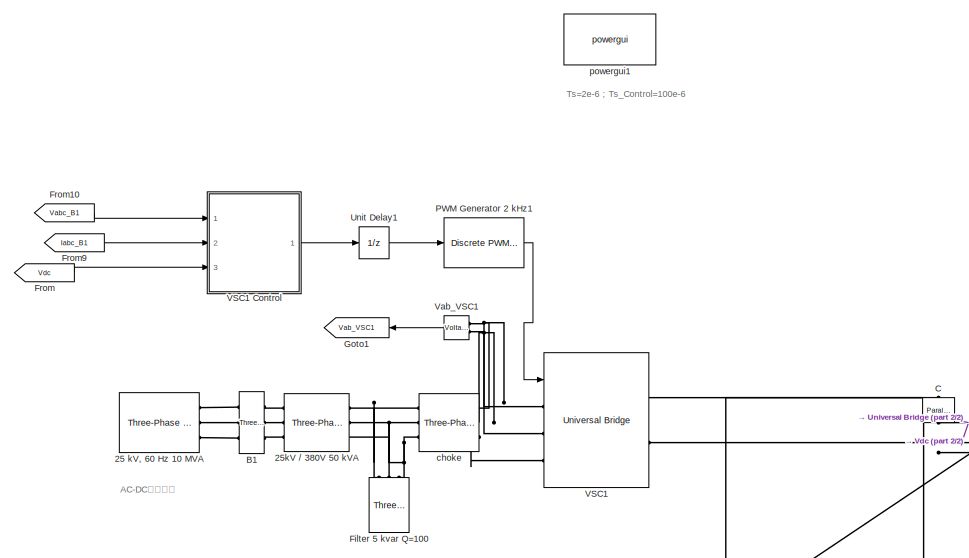
[diagram: root canvas - part 1/2, middle left region]
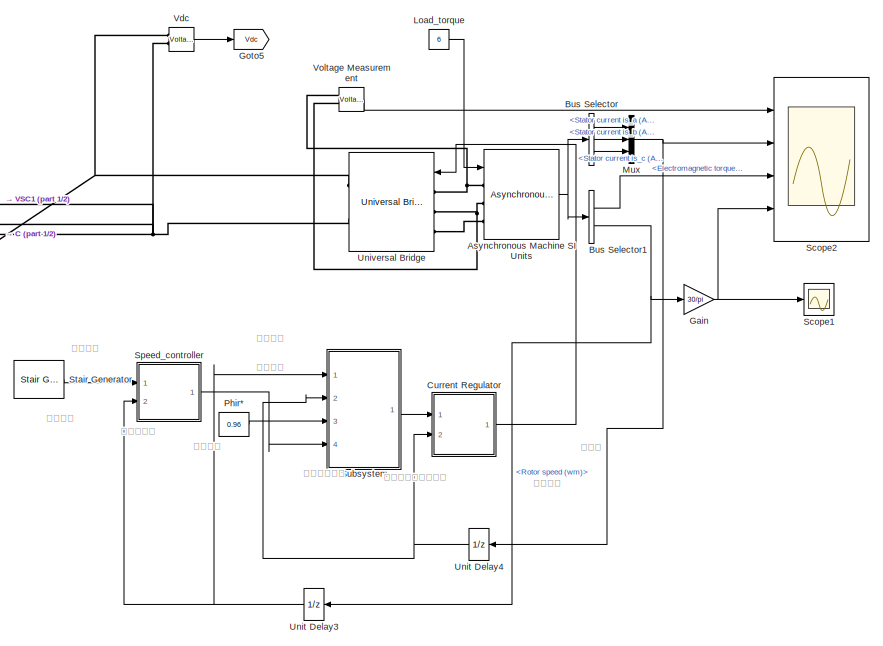
[diagram: root canvas - part 2/2, middle right region]
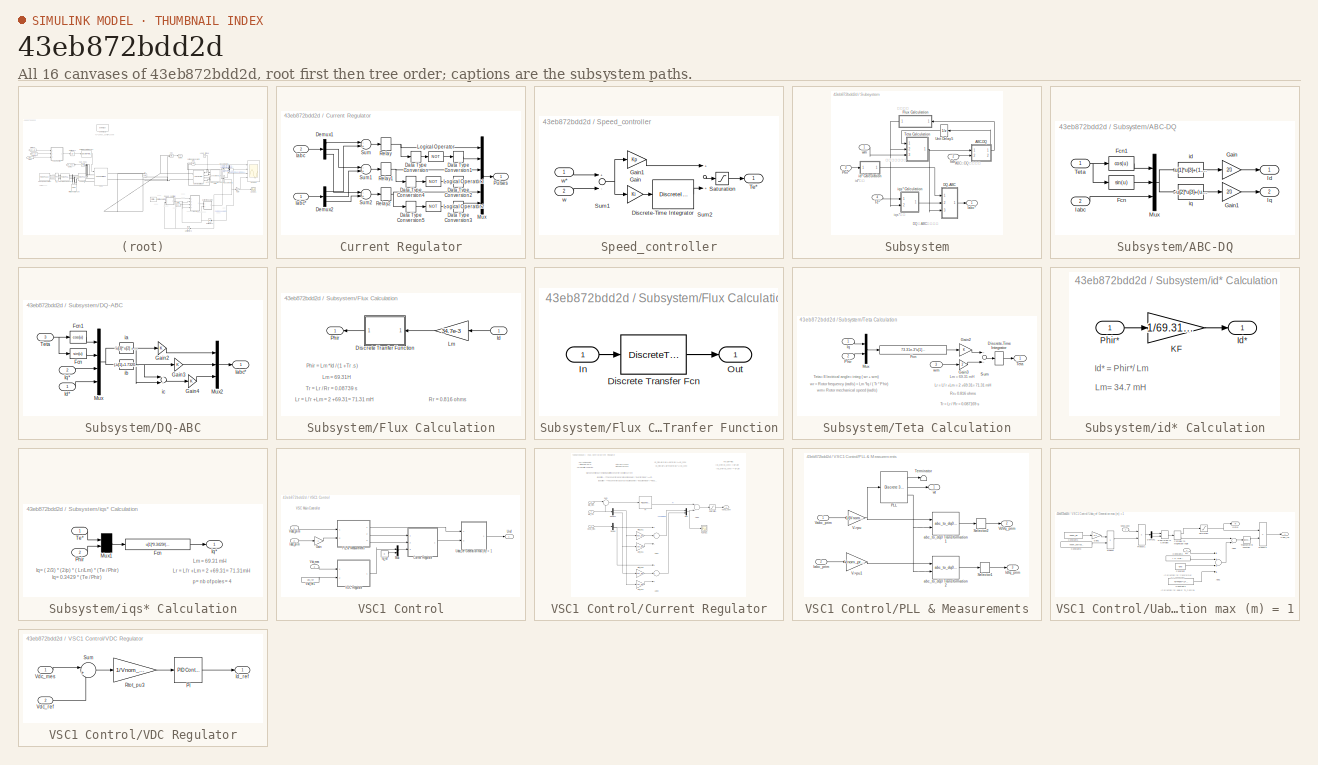
[diagram: thumbnail index - all 16 canvases of the model, root first then tree order]
MODEL slx_43eb872bdd2d
KIND model
CONFIG AbsTol = auto
CONFIG EnableMultiTasking = off
CONFIG FixedStep = 2e-6
CONFIG MaxStep = auto
CONFIG MinStep = auto
CONFIG PreLoadFcn = assignin('base','Ts',[2e-6])
CONFIG RelTol = 1e-4
CONFIG SampleTimeConstraint = Unconstrained
CONFIG Solver = FixedStepDiscrete
CONFIG SolverName = FixedStepDiscrete
CONFIG StartTime = 0.0
CONFIG StopTime = 12
BLOCK [Reference] 25 kV, 60 Hz 10 MVA  REF=powerlib/Electrical
Sources/Three-Phase Source
  Ports = [0, 0, 0, 0, 0, 0, 3]
  SourceBlock = powerlib/Electrical\nSources/Three-Phase Source
  SourceProductBaseCode = PS
  SourceProductName = Simscape Power Systems
  SourceType = Three-Phase Source
BLOCK [Reference] 25kV // 380V 50 kVA  REF=powerlib/Elements/Three-Phase
Transformer
(Two Windings)
  AttributesFormatString = \n
  Ports = [0, 0, 0, 0, 0, 3, 3]
  SourceBlock = powerlib/Elements/Three-Phase\nTransformer\n(Two Windings)
  SourceProductBaseCode = PS
  SourceProductName = Simscape Power Systems
  SourceType = Three-Phase Transformer (Two Windings)
BLOCK [Reference] Asynchronous Machine SI Units  REF=powerlib/Machines/Asynchronous Machine
SI Units
  Ports = [1, 1, 0, 0, 0, 3]
  SourceBlock = powerlib/Machines/Asynchronous Machine\nSI Units
  SourceProductBaseCode = PS
  SourceProductName = Simscape Power Systems
  SourceType = Asynchronous Machine
BLOCK [Reference] B1  REF=powerlib/Measurements/Three-Phase
V-I Measurement
  Ports = [0, 0, 0, 0, 0, 3, 3]
  SourceBlock = powerlib/Measurements/Three-Phase\nV-I Measurement
  SourceProductBaseCode = PS
  SourceProductName = Simscape Power Systems
  SourceType = Three-Phase VI Measurement
BLOCK [BusSelector] Bus Selector
  OutputAsBus = off
  OutputSignals = Stator measurements.Stator current is_a (A),Stator measurements.Stator current is_b (A),Stator measurements.Stator current is_c (A)
  Ports = [1, 3]
BLOCK [BusSelector] Bus Selector1
  OutputAsBus = off
  OutputSignals = Mechanical.Electromagnetic torque Te (N*m),Mechanical.Rotor speed (wm)
  Ports = [1, 2]
BLOCK [Reference] C  REF=powerlib/Elements/Parallel RLC Branch
  AttributesFormatString = \n
  Ports = [0, 0, 0, 0, 0, 1, 1]
  SourceBlock = powerlib/Elements/Parallel RLC Branch
  SourceProductBaseCode = PS
  SourceProductName = Simscape Power Systems
  SourceType = Parallel RLC Branch
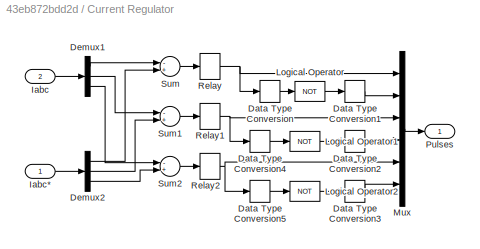
BLOCK [SubSystem] Current Regulator
  Ports = [2, 1]
  RequestExecContextInheritance = off
  Variant = off
BLOCK [DataTypeConversion] Current Regulator/Data Type Conversion
  OutDataTypeStr = boolean
BLOCK [DataTypeConversion] Current Regulator/Data Type Conversion1
  OutDataTypeStr = double
BLOCK [DataTypeConversion] Current Regulator/Data Type Conversion2
  OutDataTypeStr = double
BLOCK [DataTypeConversion] Current Regulator/Data Type Conversion3
  OutDataTypeStr = double
BLOCK [DataTypeConversion] Current Regulator/Data Type Conversion4
  OutDataTypeStr = boolean
BLOCK [DataTypeConversion] Current Regulator/Data Type Conversion5
  OutDataTypeStr = boolean
BLOCK [Demux] Current Regulator/Demux1
  Outputs = 3
  Ports = [1, 3]
BLOCK [Demux] Current Regulator/Demux2
  Outputs = 3
  Ports = [1, 3]
BLOCK [Inport] Current Regulator/Iabc
  IconDisplay = Port number
  Port = 2
BLOCK [Inport] Current Regulator/Iabc*
  IconDisplay = Port number
BLOCK [Logic] Current Regulator/Logical Operator
  Operator = NOT
  Ports = [1, 1]
BLOCK [Logic] Current Regulator/Logical Operator1
  Operator = NOT
  Ports = [1, 1]
BLOCK [Logic] Current Regulator/Logical Operator2
  Operator = NOT
  Ports = [1, 1]
BLOCK [Mux] Current Regulator/Mux
  Inputs = 6
  Ports = [6, 1]
BLOCK [Outport] Current Regulator/Pulses
  IconDisplay = Port number
  InitialOutput = 0
BLOCK [Relay] Current Regulator/Relay
  OffSwitchValue = -h/2
  OnSwitchValue = h/2
BLOCK [Relay] Current Regulator/Relay1
  OffSwitchValue = -h/2
  OnSwitchValue = h/2
BLOCK [Relay] Current Regulator/Relay2
  OffSwitchValue = -h/2
  OnSwitchValue = h/2
BLOCK [Sum] Current Regulator/Sum
  Inputs = -+
  Ports = [2, 1]
BLOCK [Sum] Current Regulator/Sum1
  Inputs = -+
  Ports = [2, 1]
BLOCK [Sum] Current Regulator/Sum2
  Inputs = -+
  Ports = [2, 1]
BLOCK [Reference] Filter 5 kvar Q=100  REF=powerlib/Elements/Three-Phase
Series RLC Load
  AttributesFormatString = \n
  Ports = [0, 0, 0, 0, 0, 3]
  SourceBlock = powerlib/Elements/Three-Phase\nSeries RLC Load
  SourceProductBaseCode = PS
  SourceProductName = Simscape Power Systems
  SourceType = Three-Phase Series RLC Load
BLOCK [From] From
  GotoTag = Vdc
  TagVisibility = global
BLOCK [From] From10
  CloseFcn = tagdialog Close
  GotoTag = Vabc_B1
  TagVisibility = global
BLOCK [From] From9
  CloseFcn = tagdialog Close
  GotoTag = Iabc_B1
  TagVisibility = global
BLOCK [Gain] Gain
  Gain = 30/pi
  OutDataTypeStr = Inherit: Inherit via internal rule
  ParamDataTypeStr = Inherit: Inherit via internal rule
  SaturateOnIntegerOverflow = off
BLOCK [Goto] Goto1
  GotoTag = Vab_VSC1
  TagVisibility = global
BLOCK [Goto] Goto5
  GotoTag = Vdc
  TagVisibility = global
BLOCK [Constant] Load_torque 
  Value = 6
BLOCK [Mux] Mux
  DisplayOption = bar
  Inputs = 3
  Ports = [3, 1]
BLOCK [Reference] PWM Generator 2 kHz1  REF=powerlib_extras/Discrete 
Control Blocks/Discrete
PWM Generator
  Ports = [1, 1]
  SourceBlock = powerlib_extras/Discrete \nControl Blocks/Discrete\nPWM Generator
  SourceType = Discrete PWM Generator
BLOCK [Constant] Phir*
  Value = 0.96
BLOCK [Scope] Scope1
  NumInputPorts = 1
  Ports = [1]
  ScopeSpecificationString = Simulink.scopes.TimeScopeBlockCfg('CurrentConfiguration', extmgr.ConfigurationSet(extmgr.Configuration('Core','General UI',true,'FigureColor',[1 1 1]),extmgr.Configuration('Core','Source UI',true),extmgr.Configuration('Sources','WiredSimulink',true,'DataLoggingVariableName','ScopeData1'),extmgr.Configuration('Visuals','Time Domain',true,'SerializedDisplays',{struct('MinYLimReal','0','MaxYLimReal',...<+4022ch>
BLOCK [Scope] Scope2
  NumInputPorts = 4
  Ports = [4]
  ScopeSpecificationString = Simulink.scopes.TimeScopeBlockCfg('CurrentConfiguration', extmgr.ConfigurationSet(extmgr.Configuration('Core','General UI',true,'FigureColor',[1 1 1]),extmgr.Configuration('Core','Source UI',true),extmgr.Configuration('Sources','WiredSimulink',true,'DataLoggingVariableName','ScopeData1'),extmgr.Configuration('Visuals','Time Domain',true,'SerializedDisplays',{struct('MinYLimReal','-1294.71271','Max...<+4113ch>
BLOCK [SubSystem] Speed_controller
  Ports = [2, 1]
  RequestExecContextInheritance = off
  Variant = off
BLOCK [DiscreteIntegrator] Speed_controller/Discrete-Time Integrator
  ICPrevOutput = DiscIntNeverNeededParam
  ICPrevScaledInput = DiscIntNeverNeededParam
  IntegratorMethod = Integration: Trapezoidal
  LimitOutput = on
  LowerSaturationLimit = -Tlim
  Ports = [1, 1]
  SampleTime = Ts
  UpperSaturationLimit = Tlim
BLOCK [Gain] Speed_controller/Gain
  Gain = Ki
BLOCK [Gain] Speed_controller/Gain1
  Gain = Kp
BLOCK [Saturate] Speed_controller/Saturation
  InputPortMap = u0
  LowerLimit = -Tlim
  Ports = [1, 1]
  UpperLimit = Tlim
BLOCK [Sum] Speed_controller/Sum1
  Inputs = +-
  Ports = [2, 1]
BLOCK [Sum] Speed_controller/Sum2
  Ports = [2, 1]
BLOCK [Outport] Speed_controller/Te*
  IconDisplay = Port number
  InitialOutput = 0
BLOCK [Inport] Speed_controller/w
  IconDisplay = Port number
  Port = 2
BLOCK [Inport] Speed_controller/w*
  IconDisplay = Port number
BLOCK [Reference] Stair Generator  REF=powerlib_meascontrol/Pulse & Signal
Generators/Stair
Generator
  Ports = [0, 1]
  SourceBlock = powerlib_meascontrol/Pulse & Signal\nGenerators/Stair\nGenerator
  SourceProductBaseCode = PS
  SourceProductName = Simscape Power Systems
  SourceType = Stair Generator
BLOCK [SubSystem] Subsystem
  Ports = [4, 1]
  RequestExecContextInheritance = off
  Variant = off
BLOCK [SubSystem] Subsystem/ABC-DQ
  Ports = [2, 2]
  RequestExecContextInheritance = off
  Variant = off
BLOCK [Fcn] Subsystem/ABC-DQ/Fcn
  Expr = sin(u)
BLOCK [Fcn] Subsystem/ABC-DQ/Fcn1
  Expr = cos(u)
BLOCK [Gain] Subsystem/ABC-DQ/Gain
  Gain = 2/3
BLOCK [Gain] Subsystem/ABC-DQ/Gain1
  Gain = 2/3
BLOCK [Inport] Subsystem/ABC-DQ/Iabc
  IconDisplay = Port number
  Port = 2
BLOCK [Outport] Subsystem/ABC-DQ/Id
  IconDisplay = Port number
  InitialOutput = 0
BLOCK [Outport] Subsystem/ABC-DQ/Iq
  IconDisplay = Port number
  InitialOutput = 0
  Port = 2
BLOCK [Mux] Subsystem/ABC-DQ/Mux
  Inputs = [1 1 3]
  Ports = [3, 1]
BLOCK [Inport] Subsystem/ABC-DQ/Teta
  IconDisplay = Port number
BLOCK [Fcn] Subsystem/ABC-DQ/id
  Expr = u[1]*u[3]+(1.7320508*u[2]-u[1])*u[4]*0.5+(-u[1]-1.7320508*u[2])*u[5]*0.5
BLOCK [Fcn] Subsystem/ABC-DQ/iq
  Expr = -u[2]*u[3]+(u[2]+1.7320508*u[1])*u[4]*0.5+(u[2]-1.7320508*u[1])*u[5]*0.5
BLOCK [SubSystem] Subsystem/DQ-ABC
  Ports = [3, 1]
  RequestExecContextInheritance = off
  Variant = off
BLOCK [Fcn] Subsystem/DQ-ABC/Fcn
  Expr = sin(u)
BLOCK [Fcn] Subsystem/DQ-ABC/Fcn1
  Expr = cos(u)
BLOCK [Gain] Subsystem/DQ-ABC/Gain2
BLOCK [Gain] Subsystem/DQ-ABC/Gain3
BLOCK [Gain] Subsystem/DQ-ABC/Gain4
BLOCK [Outport] Subsystem/DQ-ABC/Iabc*
  IconDisplay = Port number
  InitialOutput = 0
BLOCK [Inport] Subsystem/DQ-ABC/Id*
  IconDisplay = Port number
BLOCK [Inport] Subsystem/DQ-ABC/Iq*
  IconDisplay = Port number
  Port = 2
BLOCK [Mux] Subsystem/DQ-ABC/Mux
  Ports = [4, 1]
BLOCK [Mux] Subsystem/DQ-ABC/Mux2
  Inputs = 3
  Ports = [3, 1]
BLOCK [Inport] Subsystem/DQ-ABC/Teta
  IconDisplay = Port number
  Port = 3
BLOCK [Fcn] Subsystem/DQ-ABC/ia
  Expr = -u[3]*u[2] + u[4]*u[1]
BLOCK [Fcn] Subsystem/DQ-ABC/ib
  Expr = (-u[1]+1.7320508*u[2])*u[4]*0.5+(u[2]+1.7320508*u[1])*u[3]*0.5
BLOCK [Sum] Subsystem/DQ-ABC/ic
  Inputs = --
  Ports = [2, 1]
BLOCK [SubSystem] Subsystem/Flux Calculation
  Ports = [1, 1]
  RequestExecContextInheritance = off
  Variant = off
BLOCK [SubSystem] Subsystem/Flux Calculation/Discrete Tranfer Function
  Ports = [1, 1]
  RequestExecContextInheritance = off
  Variant = off
BLOCK [DiscreteTransferFcn] Subsystem/Flux Calculation/Discrete Tranfer Function/Discrete Transfer Fcn
  Denominator = dend
  InputPortMap = u0
  Numerator = numd
  Ports = [1, 1]
  SampleTime = Ts
BLOCK [Inport] Subsystem/Flux Calculation/Discrete Tranfer Function/In
  IconDisplay = Port number
BLOCK [Outport] Subsystem/Flux Calculation/Discrete Tranfer Function/Out
  IconDisplay = Port number
  InitialOutput = 0
BLOCK [Inport] Subsystem/Flux Calculation/Id
  IconDisplay = Port number
BLOCK [Gain] Subsystem/Flux Calculation/Lm
  Gain = 34.7e-3
BLOCK [Outport] Subsystem/Flux Calculation/Phir
  IconDisplay = Port number
BLOCK [Inport] Subsystem/Iabc
  IconDisplay = Port number
  Port = 2
BLOCK [Outport] Subsystem/Iabc*
  IconDisplay = Port number
BLOCK [Inport] Subsystem/Phir*
  IconDisplay = Port number
  Port = 3
BLOCK [Inport] Subsystem/Te*
  IconDisplay = Port number
  Port = 4
BLOCK [SubSystem] Subsystem/Teta Calculation
  Ports = [3, 1]
  RequestExecContextInheritance = off
  Variant = off
BLOCK [DiscreteIntegrator] Subsystem/Teta Calculation/Discrete-Time Integrator
  ICPrevOutput = DiscIntNeverNeededParam
  ICPrevScaledInput = DiscIntNeverNeededParam
  Ports = [1, 1]
  SampleTime = Ts
BLOCK [Fcn] Subsystem/Teta Calculation/Fcn
  Expr = 73.31e-3*u[1]/(u[2]*0.087169+1e-3)
BLOCK [Gain] Subsystem/Teta Calculation/Gain2
BLOCK [Gain] Subsystem/Teta Calculation/Gain3
  Gain = 2
BLOCK [Inport] Subsystem/Teta Calculation/Iq
  IconDisplay = Port number
BLOCK [Mux] Subsystem/Teta Calculation/Mux
  Inputs = 2
  Ports = [2, 1]
BLOCK [Inport] Subsystem/Teta Calculation/Phir
  IconDisplay = Port number
  Port = 2
BLOCK [Sum] Subsystem/Teta Calculation/Sum
  Ports = [2, 1]
BLOCK [Outport] Subsystem/Teta Calculation/Teta
  IconDisplay = Port number
  InitialOutput = 0
BLOCK [Inport] Subsystem/Teta Calculation/wm
  IconDisplay = Port number
  Port = 3
BLOCK [UnitDelay] Subsystem/Unit Delay5
  SampleTime = Ts
BLOCK [SubSystem] Subsystem/id* Calculation
  Ports = [1, 1]
  RequestExecContextInheritance = off
  Variant = off
BLOCK [Outport] Subsystem/id* Calculation/Id*
  IconDisplay = Port number
BLOCK [Gain] Subsystem/id* Calculation/KF
  Gain = 1/69.31e-3
BLOCK [Inport] Subsystem/id* Calculation/Phir*
  IconDisplay = Port number
BLOCK [SubSystem] Subsystem/iqs* Calculation
  Ports = [2, 1]
  RequestExecContextInheritance = off
  Variant = off
BLOCK [Fcn] Subsystem/iqs* Calculation/Fcn
  Expr = u[1]*0.3429/(u[2]+1e-3)
BLOCK [Outport] Subsystem/iqs* Calculation/Iq*
  IconDisplay = Port number
  InitialOutput = 0
BLOCK [Mux] Subsystem/iqs* Calculation/Mux1
  Inputs = 2
  Ports = [2, 1]
BLOCK [Inport] Subsystem/iqs* Calculation/Phir
  IconDisplay = Port number
  Port = 2
BLOCK [Inport] Subsystem/iqs* Calculation/Te*
  IconDisplay = Port number
BLOCK [Inport] Subsystem/wm
  IconDisplay = Port number
BLOCK [UnitDelay] Unit Delay1
  InputProcessing = Elements as channels (sample based)
  SampleTime = Ts_Control
BLOCK [UnitDelay] Unit Delay3
  SampleTime = Ts
BLOCK [UnitDelay] Unit Delay4
  SampleTime = Ts
BLOCK [Reference] Universal Bridge  REF=powerlib/Power
Electronics/Universal Bridge
  Ports = [1, 0, 0, 0, 0, 3, 2]
  SourceBlock = powerlib/Power\nElectronics/Universal Bridge
  SourceProductBaseCode = PS
  SourceProductName = Simscape Power Systems
  SourceType = Universal Bridge
BLOCK [Reference] VSC1  REF=powerlib/Power
Electronics/Universal Bridge
  Ports = [1, 0, 0, 0, 0, 3, 2]
  SourceBlock = powerlib/Power\nElectronics/Universal Bridge
  SourceProductBaseCode = PS
  SourceProductName = Simscape Power Systems
  SourceType = Universal Bridge
BLOCK [SubSystem] VSC1 Control
  Ports = [3, 1]
  RequestExecContextInheritance = off
  Variant = off
BLOCK [SubSystem] VSC1 Control/Current Regulator
  Ports = [3, 1]
  RequestExecContextInheritance = off
  Variant = off
BLOCK [Sum] VSC1 Control/Current Regulator/Add1
  InputSameDT = off
  Inputs = ++-
  OutDataTypeStr = Inherit: Inherit via internal rule
  Ports = [3, 1]
  SaturateOnIntegerOverflow = off
BLOCK [Sum] VSC1 Control/Current Regulator/Add2
  InputSameDT = off
  OutDataTypeStr = Inherit: Inherit via internal rule
  Ports = [2, 1]
  SaturateOnIntegerOverflow = off
BLOCK [Sum] VSC1 Control/Current Regulator/Add3
  InputSameDT = off
  Inputs = +++
  OutDataTypeStr = Inherit: Inherit via internal rule
  Ports = [3, 1]
  SaturateOnIntegerOverflow = off
BLOCK [Demux] VSC1 Control/Current Regulator/Demux
  DisplayOption = bar
  Outputs = 2
  Ports = [1, 2]
BLOCK [Demux] VSC1 Control/Current Regulator/Demux1
  DisplayOption = bar
  Outputs = 2
  Ports = [1, 2]
BLOCK [Inport] VSC1 Control/Current Regulator/IdIq_mes
  IconDisplay = Port number
  Port = 2
  PortDimensions = 2
BLOCK [Inport] VSC1 Control/Current Regulator/IdIq_ref
  IconDisplay = Port number
  Port = 3
  PortDimensions = 2
BLOCK [Gain] VSC1 Control/Current Regulator/Ltot_pu1
  Gain = Ltot_pu
BLOCK [Gain] VSC1 Control/Current Regulator/Ltot_pu2
  Gain = Ltot_pu
BLOCK [Mux] VSC1 Control/Current Regulator/Mux
  DisplayOption = bar
  Inputs = 2
  Ports = [2, 1]
BLOCK [Reference] VSC1 Control/Current Regulator/PI  REF=simulink/Continuous/PID Controller
  Ports = [1, 1]
  SourceBlock = simulink/Continuous/PID Controller
  SourceProductBaseCode = SL
  SourceProductName = Simulink
  SourceType = PID 1dof
BLOCK [Scope] VSC1 Control/Current Regulator/PI_Ireg1
  NumInputPorts = 1
  Ports = [1]
  ScopeSpecificationString = C++SS(StrPVP('Location','[320, 533, 983, 1080]'),StrPVP('Open','off'),StrPVP('ZoomMode','yonly'),MxPVP('AxesTitles',53,'struct(''axes1'',''%<SignalLabel>'')'),MxPVP('ScopeGraphics',56,'struct(''FigureColor'',''[0.5 0.5 0.5]'',''AxesColor'',''[0 0 0]'',''AxesTickColor'',''[1 1 1]'',''LineColors'',''[1 1 0;1 0 1;0 1 1;1 0 0;0 1 0;0 0 1]'',''LineStyles'',''-|-|-|-|-|-'',''LineWidths'',''[0.5 0.5 0.5 ...<+350ch>
BLOCK [Gain] VSC1 Control/Current Regulator/Rtot_pu1
  Gain = Rtot_pu
BLOCK [Gain] VSC1 Control/Current Regulator/Rtot_pu5
  Gain = Rtot_pu
BLOCK [Saturate] VSC1 Control/Current Regulator/Saturation
  InputPortMap = u0
  LowerLimit = -2
  Ports = [1, 1]
  UpperLimit = 2
BLOCK [Sum] VSC1 Control/Current Regulator/Sum
  IconShape = round
  InputSameDT = off
  Inputs = |-+
  OutDataTypeStr = Inherit: Inherit via internal rule
  Ports = [2, 1]
  SaturateOnIntegerOverflow = off
BLOCK [Outport] VSC1 Control/Current Regulator/VdVq_conv
  IconDisplay = Port number
BLOCK [Inport] VSC1 Control/Current Regulator/VdVq_mes
  IconDisplay = Port number
  PortDimensions = 2
BLOCK [Gain] VSC1 Control/Gain
  Gain = -1
  OutDataTypeStr = Inherit: Inherit via internal rule
  ParamDataTypeStr = Inherit: Inherit via internal rule
  SaturateOnIntegerOverflow = off
BLOCK [Inport] VSC1 Control/Iabc_prim
  IconDisplay = Port number
  Port = 2
  PortDimensions = 3
BLOCK [Constant] VSC1 Control/Iq_ref
  Value = 0
BLOCK [Mux] VSC1 Control/Mux
  DisplayOption = bar
  Inputs = 2
  Ports = [2, 1]
BLOCK [SubSystem] VSC1 Control/PLL & Measurements
  Ports = [2, 3]
  RequestExecContextInheritance = off
  Variant = off
BLOCK [Inport] VSC1 Control/PLL & Measurements/Iabc_prim
  IconDisplay = Port number
  Port = 2
BLOCK [Outport] VSC1 Control/PLL & Measurements/IdIq_prim
  IconDisplay = Port number
  Port = 3
BLOCK [Reference] VSC1 Control/PLL & Measurements/PLL  REF=powerlib_extras/Discrete 
Control Blocks/Discrete
3-phase PLL
  Ports = [1, 3]
  SourceBlock = powerlib_extras/Discrete \nControl Blocks/Discrete\n3-phase PLL
  SourceType = Discrete 3-phase PLL
BLOCK [Selector] VSC1 Control/PLL & Measurements/Selector1
  IndexOptions = Index vector (dialog)
  Indices = [1 2]
  InputPortWidth = 3
  OutputSizes = 1
  Ports = [1, 1]
BLOCK [Selector] VSC1 Control/PLL & Measurements/Selector2
  IndexOptions = Index vector (dialog)
  Indices = [1 2]
  InputPortWidth = 3
  OutputSizes = 1
  Ports = [1, 1]
BLOCK [Terminator] VSC1 Control/PLL & Measurements/Terminator
BLOCK [Gain] VSC1 Control/PLL & Measurements/V->pu
  Gain = 1/(Vnom_prim*sqrt(2)/sqrt(3))
BLOCK [Gain] VSC1 Control/PLL & Measurements/V->pu1
  Gain = Vnom_prim*sqrt(3)/Pnom/sqrt(2)
BLOCK [Inport] VSC1 Control/PLL & Measurements/Vabc_prim
  IconDisplay = Port number
BLOCK [Outport] VSC1 Control/PLL & Measurements/VdVq_prim
  IconDisplay = Port number
  Port = 2
BLOCK [Reference] VSC1 Control/PLL & Measurements/abc_to_dq0 Transformation1  REF=powerlib_extras/Measurements/abc_to_dq0
Transformation
  Ports = [2, 1]
  SourceBlock = powerlib_extras/Measurements/abc_to_dq0\nTransformation
  SourceType = abc to dq0 Transformation
BLOCK [Reference] VSC1 Control/PLL & Measurements/abc_to_dq0 Transformation2  REF=powerlib_extras/Measurements/abc_to_dq0
Transformation
  Ports = [2, 1]
  SourceBlock = powerlib_extras/Measurements/abc_to_dq0\nTransformation
  SourceType = abc to dq0 Transformation
BLOCK [Outport] VSC1 Control/PLL & Measurements/wt
  IconDisplay = Port number
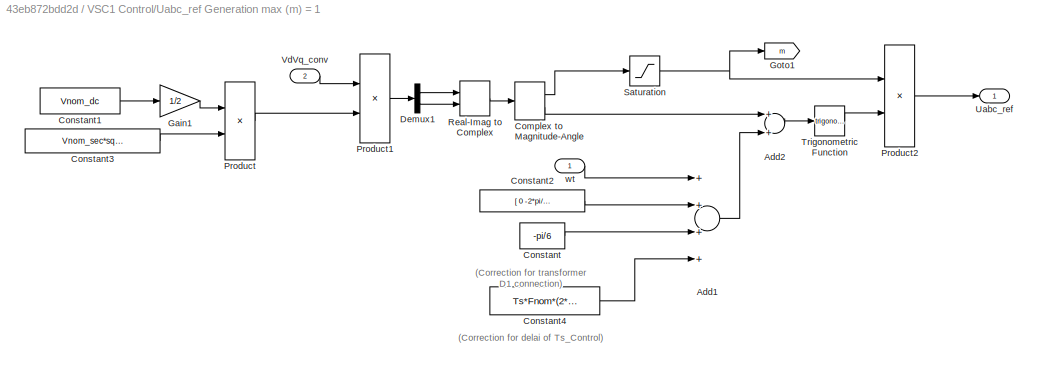
BLOCK [SubSystem] VSC1 Control/Uabc_ref Generation max (m) = 1
  Ports = [2, 1]
  RequestExecContextInheritance = off
  Variant = off
BLOCK [Sum] VSC1 Control/Uabc_ref Generation max (m) = 1/Add1
  InputSameDT = off
  Inputs = ++++
  OutDataTypeStr = Inherit: Inherit via internal rule
  Ports = [4, 1]
  SaturateOnIntegerOverflow = off
BLOCK [Sum] VSC1 Control/Uabc_ref Generation max (m) = 1/Add2
  InputSameDT = off
  OutDataTypeStr = Inherit: Inherit via internal rule
  Ports = [2, 1]
  SaturateOnIntegerOverflow = off
BLOCK [ComplexToMagnitudeAngle] VSC1 Control/Uabc_ref Generation max (m) = 1/Complex to Magnitude-Angle
  Ports = [1, 2]
BLOCK [Constant] VSC1 Control/Uabc_ref Generation max (m) = 1/Constant
  Value = -pi/6
BLOCK [Constant] VSC1 Control/Uabc_ref Generation max (m) = 1/Constant1
  Value = Vnom_dc
BLOCK [Constant] VSC1 Control/Uabc_ref Generation max (m) = 1/Constant2
  Value = [ 0  -2*pi/3  2*pi/3  ]
BLOCK [Constant] VSC1 Control/Uabc_ref Generation max (m) = 1/Constant3
  Value = Vnom_sec*sqrt(2)/sqrt(3)
BLOCK [Constant] VSC1 Control/Uabc_ref Generation max (m) = 1/Constant4
  Value = Ts*Fnom*(2*pi)
BLOCK [Demux] VSC1 Control/Uabc_ref Generation max (m) = 1/Demux1
  DisplayOption = bar
  Outputs = 2
  Ports = [1, 2]
BLOCK [Gain] VSC1 Control/Uabc_ref Generation max (m) = 1/Gain1
  Gain = 1/2
  OutDataTypeStr = Inherit: Inherit via internal rule
  ParamDataTypeStr = Inherit: Inherit via internal rule
  SaturateOnIntegerOverflow = off
BLOCK [Goto] VSC1 Control/Uabc_ref Generation max (m) = 1/Goto1
  GotoTag = m
  TagVisibility = global
BLOCK [Product] VSC1 Control/Uabc_ref Generation max (m) = 1/Product
  InputSameDT = off
  Inputs = */
  OutDataTypeStr = Inherit: Inherit via internal rule
  Ports = [2, 1]
  SaturateOnIntegerOverflow = off
BLOCK [Product] VSC1 Control/Uabc_ref Generation max (m) = 1/Product1
  InputSameDT = off
  Inputs = */
  OutDataTypeStr = Inherit: Inherit via internal rule
  Ports = [2, 1]
  SaturateOnIntegerOverflow = off
BLOCK [Product] VSC1 Control/Uabc_ref Generation max (m) = 1/Product2
  InputSameDT = off
  Inputs = **
  OutDataTypeStr = Inherit: Inherit via internal rule
  Ports = [2, 1]
  SaturateOnIntegerOverflow = off
BLOCK [RealImagToComplex] VSC1 Control/Uabc_ref Generation max (m) = 1/Real-Imag to Complex
  Ports = [2, 1]
BLOCK [Saturate] VSC1 Control/Uabc_ref Generation max (m) = 1/Saturation
  InputPortMap = u0
  LowerLimit = 0
  Ports = [1, 1]
  UpperLimit = 1
BLOCK [Trigonometry] VSC1 Control/Uabc_ref Generation max (m) = 1/Trigonometric Function
  Ports = [1, 1]
BLOCK [Outport] VSC1 Control/Uabc_ref Generation max (m) = 1/Uabc_ref
  IconDisplay = Port number
BLOCK [Inport] VSC1 Control/Uabc_ref Generation max (m) = 1/VdVq_conv
  IconDisplay = Port number
  Port = 2
BLOCK [Inport] VSC1 Control/Uabc_ref Generation max (m) = 1/wt
  IconDisplay = Port number
BLOCK [Outport] VSC1 Control/Uref
  IconDisplay = Port number
BLOCK [SubSystem] VSC1 Control/VDC Regulator
  Ports = [2, 1]
  RequestExecContextInheritance = off
  Variant = off
BLOCK [Outport] VSC1 Control/VDC Regulator/Id_ref
  IconDisplay = Port number
  InitialOutput = 0
  SampleTime = Ts
BLOCK [Reference] VSC1 Control/VDC Regulator/PI  REF=simulink/Continuous/PID Controller
  Ports = [1, 1]
  SourceBlock = simulink/Continuous/PID Controller
  SourceProductBaseCode = SL
  SourceProductName = Simulink
  SourceType = PID 1dof
BLOCK [Gain] VSC1 Control/VDC Regulator/Rtot_pu3
  Gain = 1/Vnom_dc
BLOCK [Sum] VSC1 Control/VDC Regulator/Sum
  IconShape = round
  InputSameDT = off
  Inputs = |+-
  OutDataTypeStr = Inherit: Inherit via internal rule
  Ports = [2, 1]
  SaturateOnIntegerOverflow = off
BLOCK [Inport] VSC1 Control/VDC Regulator/Vdc_mes
  IconDisplay = Port number
  PortDimensions = 1
BLOCK [Inport] VSC1 Control/VDC Regulator/Vdc_ref
  IconDisplay = Port number
  Port = 2
  PortDimensions = 1
BLOCK [Inport] VSC1 Control/Vabc_prim
  IconDisplay = Port number
  PortDimensions = 3
BLOCK [Inport] VSC1 Control/Vdc_mes
  IconDisplay = Port number
  Port = 3
  PortDimensions = 1
BLOCK [Constant] VSC1 Control/Vdc_ref1
  Value = Vdc_ref
BLOCK [Reference] Vab_VSC1  REF=powerlib/Measurements/Voltage Measurement
  AttributesFormatString = \n
  Ports = [0, 1, 0, 0, 0, 2]
  SourceBlock = powerlib/Measurements/Voltage Measurement
  SourceProductBaseCode = PS
  SourceProductName = Simscape Power Systems
  SourceType = Voltage Measurement
  Tag = PoWeRsYsTeMmEaSuReMeNt
BLOCK [Reference] Vdc   REF=powerlib/Measurements/Voltage Measurement
  AttributesFormatString = \n
  Ports = [0, 1, 0, 0, 0, 2]
  SourceBlock = powerlib/Measurements/Voltage Measurement
  SourceProductBaseCode = PS
  SourceProductName = Simscape Power Systems
  SourceType = Voltage Measurement
  Tag = PoWeRsYsTeMmEaSuReMeNt
BLOCK [Reference] Voltage Measurement  REF=powerlib/Measurements/Voltage Measurement
  Ports = [0, 1, 0, 0, 0, 2]
  SourceBlock = powerlib/Measurements/Voltage Measurement
  SourceProductBaseCode = PS
  SourceProductName = Simscape Power Systems
  SourceType = Voltage Measurement
  UserDataPersistent = on
BLOCK [Reference] choke  REF=powerlib/Elements/Three-Phase
Series RLC Branch
  AttributesFormatString = \n
  Ports = [0, 0, 0, 0, 0, 3, 3]
  SourceBlock = powerlib/Elements/Three-Phase\nSeries RLC Branch
  SourceProductBaseCode = PS
  SourceProductName = Simscape Power Systems
  SourceType = Three-Phase Series RLC Branch
BLOCK [Reference] powergui1  REF=powerlib/powergui
  Ports = []
  Priority = 2
  SourceBlock = powerlib/powergui
  SourceProductBaseCode = PS
  SourceProductName = Simscape Power Systems
  SourceType = PSB option menu block
ANNOTATION (root): Ts=2e-6 ; Ts_Control=100e-6
ANNOTATION (root): AC-DC变换系统
ANNOTATION (root): 实际转速
ANNOTATION (root): 期望转速
ANNOTATION (root): 电流比较脉冲产生器
ANNOTATION (root): 矢量控制环节
ANNOTATION (root): 示波器
ANNOTATION (root): 给定磁链
ANNOTATION (root): 负载转矩
ANNOTATION (root): 转子电流
ANNOTATION (root): 速度控制器
ANNOTATION Subsystem: ABC到DQ坐标转换
ANNOTATION Subsystem: DQ到ABC坐标转换
ANNOTATION Subsystem: id*求解
ANNOTATION Subsystem: iqs*求解
ANNOTATION Subsystem: 求解磁链
ANNOTATION Subsystem: 求解转子磁链角
ANNOTATION Subsystem/Flux Calculation: Lm = 69.31H
ANNOTATION Subsystem/Flux Calculation: Lr = Ll'r +Lm = 2 +69.31= 71.31 mH
ANNOTATION Subsystem/Flux Calculation: Phir = Lm *Id / (1 +Tr .s)
ANNOTATION Subsystem/Flux Calculation: Rr = 0.816 ohms
ANNOTATION Subsystem/Flux Calculation: Tr = Lr / Rr = 0.08739 s
ANNOTATION Subsystem/Teta Calculation: Teta= Electrical angle= integ ( wr + wm)
ANNOTATION Subsystem/Teta Calculation: Lm = 69.31 mH
ANNOTATION Subsystem/Teta Calculation: Lr = Ll'r +Lm = 2 +69.31= 71.31 mH
ANNOTATION Subsystem/Teta Calculation: Rr= 0.816 ohms
ANNOTATION Subsystem/Teta Calculation: Tr = Lr / Rr = 0.087169 s
ANNOTATION Subsystem/Teta Calculation: wm= Rotor mechanical speed (rad/s)
ANNOTATION Subsystem/Teta Calculation: wr = Rotor frequency (rad/s) = Lm *Iq / ( Tr * Phir)
ANNOTATION Subsystem/id* Calculation: Id* = Phir*/ Lm
ANNOTATION Subsystem/id* Calculation: Lm= 34.7 mH
ANNOTATION Subsystem/iqs* Calculation: Iq= ( 2/3) * (2/p) * ( Lr/Lm) * (Te / Phir)
ANNOTATION Subsystem/iqs* Calculation: Iq= 0.3429 * (Te / Phir)
ANNOTATION Subsystem/iqs* Calculation: Lm = 69.31 mH
ANNOTATION Subsystem/iqs* Calculation: Lr = Ll'r +Lm = 2 +69.31= 71.31mH
ANNOTATION Subsystem/iqs* Calculation: p= nb of poles = 4
ANNOTATION VSC1 Control: VSC Main Controller
ANNOTATION VSC1 Control/Current Regulator: (Vd_prim - Vd_conv) ~= + Iq * Ltot
ANNOTATION VSC1 Control/Current Regulator: (Vq_prim - Vq_conv) ~ = - Id * Ltot
ANNOTATION VSC1 Control/Current Regulator: Current Regulator (with feedforward)
ANNOTATION VSC1 Control/Current Regulator: For Ltot >> Rtot :
ANNOTATION VSC1 Control/Current Regulator: Id positive --> The converter generates active power ("Inverter mode") = Active Power P positive
ANNOTATION VSC1 Control/Current Regulator: Iq positive --> The converter absorbs reactive power ("Inductive mode") = Reactive Power Q negative
ANNOTATION VSC1 Control/Current Regulator: Ltot = Lxfo + Lchoke Rtot = Rxfo + Rchoke
ANNOTATION VSC1 Control/Current Regulator: Sign Convention: Current going out of the converter = positive current
ANNOTATION VSC1 Control/Current Regulator: Vd_mes + Id*R - Iq*L + deriv(Id)*L= Vd_conv
ANNOTATION VSC1 Control/Current Regulator: Vq_mes + Id*L + Iq*R + deriv(Iq)*L= Vq_conv
ANNOTATION VSC1 Control/Current Regulator: harmonic filter neglected
ANNOTATION VSC1 Control/Uabc_ref Generation max (m) = 1: (Correction for delai of Ts_Control)
ANNOTATION VSC1 Control/Uabc_ref Generation max (m) = 1: (Correction for transformer D1 connection)
NET Asynchronous Machine SI Units:1 -> Bus Selector1:1, Bus Selector:1
LINE Bus Selector1:1 -> Scope2:3
NET Bus Selector1:2 -> Gain:1, Unit Delay3:1
LINE Bus Selector:1 -> Mux:1
LINE Bus Selector:2 -> Mux:2
LINE Bus Selector:3 -> Mux:3
LINE Current Regulator/Data Type Conversion1:1 -> Current Regulator/Mux:2
LINE Current Regulator/Data Type Conversion2:1 -> Current Regulator/Mux:4
LINE Current Regulator/Data Type Conversion3:1 -> Current Regulator/Mux:6
LINE Current Regulator/Data Type Conversion4:1 -> Current Regulator/Logical Operator1:1
LINE Current Regulator/Data Type Conversion5:1 -> Current Regulator/Logical Operator2:1
LINE Current Regulator/Data Type Conversion:1 -> Current Regulator/Logical Operator:1
LINE Current Regulator/Demux1:1 -> Current Regulator/Sum:1
LINE Current Regulator/Demux1:2 -> Current Regulator/Sum1:1
LINE Current Regulator/Demux1:3 -> Current Regulator/Sum2:1
LINE Current Regulator/Demux2:1 -> Current Regulator/Sum:2
LINE Current Regulator/Demux2:2 -> Current Regulator/Sum1:2
LINE Current Regulator/Demux2:3 -> Current Regulator/Sum2:2
LINE Current Regulator/Iabc*:1 -> Current Regulator/Demux2:1
LINE Current Regulator/Iabc:1 -> Current Regulator/Demux1:1
LINE Current Regulator/Logical Operator1:1 -> Current Regulator/Data Type Conversion2:1
LINE Current Regulator/Logical Operator2:1 -> Current Regulator/Data Type Conversion3:1
LINE Current Regulator/Logical Operator:1 -> Current Regulator/Data Type Conversion1:1
LINE Current Regulator/Mux:1 -> Current Regulator/Pulses:1
NET Current Regulator/Relay1:1 -> Current Regulator/Data Type Conversion4:1, Current Regulator/Mux:3
NET Current Regulator/Relay2:1 -> Current Regulator/Data Type Conversion5:1, Current Regulator/Mux:5
NET Current Regulator/Relay:1 -> Current Regulator/Data Type Conversion:1, Current Regulator/Mux:1
LINE Current Regulator/Sum1:1 -> Current Regulator/Relay1:1
LINE Current Regulator/Sum2:1 -> Current Regulator/Relay2:1
LINE Current Regulator/Sum:1 -> Current Regulator/Relay:1
LINE Current Regulator:1 -> Universal Bridge:1
LINE From10:1 -> VSC1 Control:1
LINE From9:1 -> VSC1 Control:2
LINE From:1 -> VSC1 Control:3
NET Gain:1 -> Scope1:1, Scope2:4
LINE Load_torque :1 -> Asynchronous Machine SI Units:1
NET Mux:1 -> Scope2:2, Unit Delay4:1
LINE PWM Generator 2 kHz1:1 -> VSC1:1
LINE Phir*:1 -> Subsystem:3
LINE Speed_controller/Discrete-Time Integrator:1 -> Speed_controller/Sum2:2
LINE Speed_controller/Gain1:1 -> Speed_controller/Sum2:1
LINE Speed_controller/Gain:1 -> Speed_controller/Discrete-Time Integrator:1
LINE Speed_controller/Saturation:1 -> Speed_controller/Te*:1
NET Speed_controller/Sum1:1 -> Speed_controller/Gain1:1, Speed_controller/Gain:1
LINE Speed_controller/Sum2:1 -> Speed_controller/Saturation:1
LINE Speed_controller/w*:1 -> Speed_controller/Sum1:1
LINE Speed_controller/w:1 -> Speed_controller/Sum1:2
LINE Speed_controller:1 -> Subsystem:4
LINE Stair Generator:1 -> Speed_controller:1
LINE Subsystem/ABC-DQ/Fcn1:1 -> Subsystem/ABC-DQ/Mux:1
LINE Subsystem/ABC-DQ/Fcn:1 -> Subsystem/ABC-DQ/Mux:2
LINE Subsystem/ABC-DQ/Gain1:1 -> Subsystem/ABC-DQ/Iq:1
LINE Subsystem/ABC-DQ/Gain:1 -> Subsystem/ABC-DQ/Id:1
LINE Subsystem/ABC-DQ/Iabc:1 -> Subsystem/ABC-DQ/Mux:3
NET Subsystem/ABC-DQ/Mux:1 -> Subsystem/ABC-DQ/id:1, Subsystem/ABC-DQ/iq:1
NET Subsystem/ABC-DQ/Teta:1 -> Subsystem/ABC-DQ/Fcn1:1, Subsystem/ABC-DQ/Fcn:1
LINE Subsystem/ABC-DQ/id:1 -> Subsystem/ABC-DQ/Gain:1
LINE Subsystem/ABC-DQ/iq:1 -> Subsystem/ABC-DQ/Gain1:1
LINE Subsystem/ABC-DQ:1 -> Subsystem/Flux Calculation:1
LINE Subsystem/ABC-DQ:2 -> Subsystem/Unit Delay5:1
LINE Subsystem/DQ-ABC/Fcn1:1 -> Subsystem/DQ-ABC/Mux:1
LINE Subsystem/DQ-ABC/Fcn:1 -> Subsystem/DQ-ABC/Mux:2
LINE Subsystem/DQ-ABC/Gain2:1 -> Subsystem/DQ-ABC/Mux2:1
LINE Subsystem/DQ-ABC/Gain3:1 -> Subsystem/DQ-ABC/Mux2:2
LINE Subsystem/DQ-ABC/Gain4:1 -> Subsystem/DQ-ABC/Mux2:3
LINE Subsystem/DQ-ABC/Id*:1 -> Subsystem/DQ-ABC/Mux:4
LINE Subsystem/DQ-ABC/Iq*:1 -> Subsystem/DQ-ABC/Mux:3
LINE Subsystem/DQ-ABC/Mux2:1 -> Subsystem/DQ-ABC/Iabc*:1
NET Subsystem/DQ-ABC/Mux:1 -> Subsystem/DQ-ABC/ia:1, Subsystem/DQ-ABC/ib:1
NET Subsystem/DQ-ABC/Teta:1 -> Subsystem/DQ-ABC/Fcn1:1, Subsystem/DQ-ABC/Fcn:1
NET Subsystem/DQ-ABC/ia:1 -> Subsystem/DQ-ABC/Gain2:1, Subsystem/DQ-ABC/ic:2
NET Subsystem/DQ-ABC/ib:1 -> Subsystem/DQ-ABC/Gain3:1, Subsystem/DQ-ABC/ic:1
LINE Subsystem/DQ-ABC/ic:1 -> Subsystem/DQ-ABC/Gain4:1
LINE Subsystem/DQ-ABC:1 -> Subsystem/Iabc*:1
LINE Subsystem/Flux Calculation/Discrete Tranfer Function/Discrete Transfer Fcn:1 -> Subsystem/Flux Calculation/Discrete Tranfer Function/Out:1
LINE Subsystem/Flux Calculation/Discrete Tranfer Function/In:1 -> Subsystem/Flux Calculation/Discrete Tranfer Function/Discrete Transfer Fcn:1
LINE Subsystem/Flux Calculation/Discrete Tranfer Function:1 -> Subsystem/Flux Calculation/Phir:1
LINE Subsystem/Flux Calculation/Id:1 -> Subsystem/Flux Calculation/Lm:1
LINE Subsystem/Flux Calculation/Lm:1 -> Subsystem/Flux Calculation/Discrete Tranfer Function:1
NET Subsystem/Flux Calculation:1 -> Subsystem/Teta Calculation:2, Subsystem/iqs* Calculation:2
LINE Subsystem/Iabc:1 -> Subsystem/ABC-DQ:2
LINE Subsystem/Phir*:1 -> Subsystem/id* Calculation:1
LINE Subsystem/Te*:1 -> Subsystem/iqs* Calculation:1
LINE Subsystem/Teta Calculation/Discrete-Time Integrator:1 -> Subsystem/Teta Calculation/Teta:1
LINE Subsystem/Teta Calculation/Fcn:1 -> Subsystem/Teta Calculation/Gain2:1
LINE Subsystem/Teta Calculation/Gain2:1 -> Subsystem/Teta Calculation/Sum:1
LINE Subsystem/Teta Calculation/Gain3:1 -> Subsystem/Teta Calculation/Sum:2
LINE Subsystem/Teta Calculation/Iq:1 -> Subsystem/Teta Calculation/Mux:1
LINE Subsystem/Teta Calculation/Mux:1 -> Subsystem/Teta Calculation/Fcn:1
LINE Subsystem/Teta Calculation/Phir:1 -> Subsystem/Teta Calculation/Mux:2
LINE Subsystem/Teta Calculation/Sum:1 -> Subsystem/Teta Calculation/Discrete-Time Integrator:1
LINE Subsystem/Teta Calculation/wm:1 -> Subsystem/Teta Calculation/Gain3:1
NET Subsystem/Teta Calculation:1 -> Subsystem/ABC-DQ:1, Subsystem/DQ-ABC:3
LINE Subsystem/Unit Delay5:1 -> Subsystem/Teta Calculation:1
LINE Subsystem/id* Calculation/KF:1 -> Subsystem/id* Calculation/Id*:1
LINE Subsystem/id* Calculation/Phir*:1 -> Subsystem/id* Calculation/KF:1
LINE Subsystem/id* Calculation:1 -> Subsystem/DQ-ABC:1
LINE Subsystem/iqs* Calculation/Fcn:1 -> Subsystem/iqs* Calculation/Iq*:1
LINE Subsystem/iqs* Calculation/Mux1:1 -> Subsystem/iqs* Calculation/Fcn:1
LINE Subsystem/iqs* Calculation/Phir:1 -> Subsystem/iqs* Calculation/Mux1:2
LINE Subsystem/iqs* Calculation/Te*:1 -> Subsystem/iqs* Calculation/Mux1:1
LINE Subsystem/iqs* Calculation:1 -> Subsystem/DQ-ABC:2
LINE Subsystem/wm:1 -> Subsystem/Teta Calculation:3
LINE Subsystem:1 -> Current Regulator:1
LINE Unit Delay1:1 -> PWM Generator 2 kHz1:1
NET Unit Delay3:1 -> Speed_controller:2, Subsystem:1
NET Unit Delay4:1 -> Current Regulator:2, Subsystem:2
LINE VSC1 Control/Current Regulator/Add1:1 -> VSC1 Control/Current Regulator/Mux:1
LINE VSC1 Control/Current Regulator/Add2:1 -> VSC1 Control/Current Regulator/Saturation:1
LINE VSC1 Control/Current Regulator/Add3:1 -> VSC1 Control/Current Regulator/Mux:2
NET VSC1 Control/Current Regulator/Demux1:1 -> VSC1 Control/Current Regulator/Ltot_pu2:1, VSC1 Control/Current Regulator/Rtot_pu1:1
NET VSC1 Control/Current Regulator/Demux1:2 -> VSC1 Control/Current Regulator/Ltot_pu1:1, VSC1 Control/Current Regulator/Rtot_pu5:1
LINE VSC1 Control/Current Regulator/Demux:1 -> VSC1 Control/Current Regulator/Add1:1
LINE VSC1 Control/Current Regulator/Demux:2 -> VSC1 Control/Current Regulator/Add3:1
LINE VSC1 Control/Current Regulator/IdIq_mes:1 -> VSC1 Control/Current Regulator/Sum:1
NET VSC1 Control/Current Regulator/IdIq_ref:1 -> VSC1 Control/Current Regulator/Demux1:1, VSC1 Control/Current Regulator/Sum:2
LINE VSC1 Control/Current Regulator/Ltot_pu1:1 -> VSC1 Control/Current Regulator/Add1:3
LINE VSC1 Control/Current Regulator/Ltot_pu2:1 -> VSC1 Control/Current Regulator/Add3:3
NET VSC1 Control/Current Regulator/Mux:1 -> VSC1 Control/Current Regulator/Add2:2, VSC1 Control/Current Regulator/PI_Ireg1:1
LINE VSC1 Control/Current Regulator/PI:1 -> VSC1 Control/Current Regulator/Add2:1
LINE VSC1 Control/Current Regulator/Rtot_pu1:1 -> VSC1 Control/Current Regulator/Add1:2
LINE VSC1 Control/Current Regulator/Rtot_pu5:1 -> VSC1 Control/Current Regulator/Add3:2
LINE VSC1 Control/Current Regulator/Saturation:1 -> VSC1 Control/Current Regulator/VdVq_conv:1
LINE VSC1 Control/Current Regulator/Sum:1 -> VSC1 Control/Current Regulator/PI:1
LINE VSC1 Control/Current Regulator/VdVq_mes:1 -> VSC1 Control/Current Regulator/Demux:1
LINE VSC1 Control/Current Regulator:1 -> VSC1 Control/Uabc_ref Generation max (m) = 1:2
LINE VSC1 Control/Gain:1 -> VSC1 Control/PLL & Measurements:2
LINE VSC1 Control/Iabc_prim:1 -> VSC1 Control/Gain:1
LINE VSC1 Control/Iq_ref:1 -> VSC1 Control/Mux:2
LINE VSC1 Control/Mux:1 -> VSC1 Control/Current Regulator:3
LINE VSC1 Control/PLL & Measurements/Iabc_prim:1 -> VSC1 Control/PLL & Measurements/V->pu1:1
LINE VSC1 Control/PLL & Measurements/PLL:1 -> VSC1 Control/PLL & Measurements/Terminator:1
LINE VSC1 Control/PLL & Measurements/PLL:2 -> VSC1 Control/PLL & Measurements/wt:1
NET VSC1 Control/PLL & Measurements/PLL:3 -> VSC1 Control/PLL & Measurements/abc_to_dq0 Transformation1:2, VSC1 Control/PLL & Measurements/abc_to_dq0 Transformation2:2
LINE VSC1 Control/PLL & Measurements/Selector1:1 -> VSC1 Control/PLL & Measurements/IdIq_prim:1
LINE VSC1 Control/PLL & Measurements/Selector2:1 -> VSC1 Control/PLL & Measurements/VdVq_prim:1
LINE VSC1 Control/PLL & Measurements/V->pu1:1 -> VSC1 Control/PLL & Measurements/abc_to_dq0 Transformation2:1
NET VSC1 Control/PLL & Measurements/V->pu:1 -> VSC1 Control/PLL & Measurements/PLL:1, VSC1 Control/PLL & Measurements/abc_to_dq0 Transformation1:1
LINE VSC1 Control/PLL & Measurements/Vabc_prim:1 -> VSC1 Control/PLL & Measurements/V->pu:1
LINE VSC1 Control/PLL & Measurements/abc_to_dq0 Transformation1:1 -> VSC1 Control/PLL & Measurements/Selector2:1
LINE VSC1 Control/PLL & Measurements/abc_to_dq0 Transformation2:1 -> VSC1 Control/PLL & Measurements/Selector1:1
LINE VSC1 Control/PLL & Measurements:1 -> VSC1 Control/Uabc_ref Generation max (m) = 1:1
LINE VSC1 Control/PLL & Measurements:2 -> VSC1 Control/Current Regulator:1
LINE VSC1 Control/PLL & Measurements:3 -> VSC1 Control/Current Regulator:2
LINE VSC1 Control/Uabc_ref Generation max (m) = 1/Add1:1 -> VSC1 Control/Uabc_ref Generation max (m) = 1/Add2:2
LINE VSC1 Control/Uabc_ref Generation max (m) = 1/Add2:1 -> VSC1 Control/Uabc_ref Generation max (m) = 1/Trigonometric Function:1
LINE VSC1 Control/Uabc_ref Generation max (m) = 1/Complex to Magnitude-Angle:1 -> VSC1 Control/Uabc_ref Generation max (m) = 1/Saturation:1
LINE VSC1 Control/Uabc_ref Generation max (m) = 1/Complex to Magnitude-Angle:2 -> VSC1 Control/Uabc_ref Generation max (m) = 1/Add2:1
LINE VSC1 Control/Uabc_ref Generation max (m) = 1/Constant1:1 -> VSC1 Control/Uabc_ref Generation max (m) = 1/Gain1:1
LINE VSC1 Control/Uabc_ref Generation max (m) = 1/Constant2:1 -> VSC1 Control/Uabc_ref Generation max (m) = 1/Add1:2
LINE VSC1 Control/Uabc_ref Generation max (m) = 1/Constant3:1 -> VSC1 Control/Uabc_ref Generation max (m) = 1/Product:2
LINE VSC1 Control/Uabc_ref Generation max (m) = 1/Constant4:1 -> VSC1 Control/Uabc_ref Generation max (m) = 1/Add1:4
LINE VSC1 Control/Uabc_ref Generation max (m) = 1/Constant:1 -> VSC1 Control/Uabc_ref Generation max (m) = 1/Add1:3
LINE VSC1 Control/Uabc_ref Generation max (m) = 1/Demux1:1 -> VSC1 Control/Uabc_ref Generation max (m) = 1/Real-Imag to Complex:1
LINE VSC1 Control/Uabc_ref Generation max (m) = 1/Demux1:2 -> VSC1 Control/Uabc_ref Generation max (m) = 1/Real-Imag to Complex:2
LINE VSC1 Control/Uabc_ref Generation max (m) = 1/Gain1:1 -> VSC1 Control/Uabc_ref Generation max (m) = 1/Product:1
LINE VSC1 Control/Uabc_ref Generation max (m) = 1/Product1:1 -> VSC1 Control/Uabc_ref Generation max (m) = 1/Demux1:1
LINE VSC1 Control/Uabc_ref Generation max (m) = 1/Product2:1 -> VSC1 Control/Uabc_ref Generation max (m) = 1/Uabc_ref:1
LINE VSC1 Control/Uabc_ref Generation max (m) = 1/Product:1 -> VSC1 Control/Uabc_ref Generation max (m) = 1/Product1:2
LINE VSC1 Control/Uabc_ref Generation max (m) = 1/Real-Imag to Complex:1 -> VSC1 Control/Uabc_ref Generation max (m) = 1/Complex to Magnitude-Angle:1
NET VSC1 Control/Uabc_ref Generation max (m) = 1/Saturation:1 -> VSC1 Control/Uabc_ref Generation max (m) = 1/Goto1:1, VSC1 Control/Uabc_ref Generation max (m) = 1/Product2:1
LINE VSC1 Control/Uabc_ref Generation max (m) = 1/Trigonometric Function:1 -> VSC1 Control/Uabc_ref Generation max (m) = 1/Product2:2
LINE VSC1 Control/Uabc_ref Generation max (m) = 1/VdVq_conv:1 -> VSC1 Control/Uabc_ref Generation max (m) = 1/Product1:1
LINE VSC1 Control/Uabc_ref Generation max (m) = 1/wt:1 -> VSC1 Control/Uabc_ref Generation max (m) = 1/Add1:1
LINE VSC1 Control/Uabc_ref Generation max (m) = 1:1 -> VSC1 Control/Uref:1
LINE VSC1 Control/VDC Regulator/PI:1 -> VSC1 Control/VDC Regulator/Id_ref:1
LINE VSC1 Control/VDC Regulator/Rtot_pu3:1 -> VSC1 Control/VDC Regulator/PI:1
LINE VSC1 Control/VDC Regulator/Sum:1 -> VSC1 Control/VDC Regulator/Rtot_pu3:1
LINE VSC1 Control/VDC Regulator/Vdc_mes:1 -> VSC1 Control/VDC Regulator/Sum:1
LINE VSC1 Control/VDC Regulator/Vdc_ref:1 -> VSC1 Control/VDC Regulator/Sum:2
LINE VSC1 Control/VDC Regulator:1 -> VSC1 Control/Mux:1
LINE VSC1 Control/Vabc_prim:1 -> VSC1 Control/PLL & Measurements:1
LINE VSC1 Control/Vdc_mes:1 -> VSC1 Control/VDC Regulator:1
LINE VSC1 Control/Vdc_ref1:1 -> VSC1 Control/VDC Regulator:2
LINE VSC1 Control:1 -> Unit Delay1:1
LINE Vab_VSC1:1 -> Goto1:1
LINE Vdc :1 -> Goto5:1
LINE Voltage Measurement:1 -> Scope2:1
PLINE 25 kV, 60 Hz 10 MVA:RConn1 -- B1:LConn1
PLINE 25 kV, 60 Hz 10 MVA:RConn2 -- B1:LConn2
PLINE 25 kV, 60 Hz 10 MVA:RConn3 -- B1:LConn3
PLINE 25kV // 380V 50 kVA:LConn1 -- B1:RConn1
PLINE 25kV // 380V 50 kVA:LConn2 -- B1:RConn2
PLINE 25kV // 380V 50 kVA:LConn3 -- B1:RConn3
PNET net1: 25kV // 380V 50 kVA:RConn1 -- Filter 5 kvar Q=100:LConn1 -- choke:LConn1
PNET net2: 25kV // 380V 50 kVA:RConn2 -- Filter 5 kvar Q=100:LConn2 -- choke:LConn2
PNET net3: 25kV // 380V 50 kVA:RConn3 -- Filter 5 kvar Q=100:LConn3 -- choke:LConn3
PNET net4: Asynchronous Machine SI Units:LConn1 -- Universal Bridge:LConn1 -- Voltage Measurement:LConn1
PNET net5: Asynchronous Machine SI Units:LConn2 -- Universal Bridge:LConn2 -- Voltage Measurement:LConn2
PLINE Asynchronous Machine SI Units:LConn3 -- Universal Bridge:LConn3
PNET net6: C:LConn1 -- Universal Bridge:RConn1 -- VSC1:RConn1 -- Vdc :LConn1
PNET net7: C:RConn1 -- Universal Bridge:RConn2 -- VSC1:RConn2 -- Vdc :LConn2
PNET net8: VSC1:LConn1 -- Vab_VSC1:LConn1 -- choke:RConn1
PNET net9: VSC1:LConn2 -- Vab_VSC1:LConn2 -- choke:RConn2
PLINE VSC1:LConn3 -- choke:RConn3
note: NET lines group one-source signal fan-out (src -> all destinations, sorted); 1:1 wires keep LINE; PNET lines group multi-terminal physical nets as a canonical sorted terminal list (undirected conserving connections); 2-terminal nets keep the pairwise PLINE form
